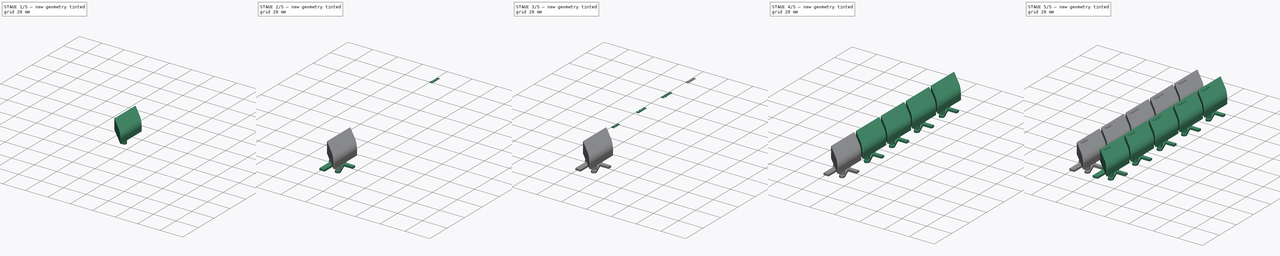
[diagram: build sequence overview — one tinted view per stage of 5, left to right]
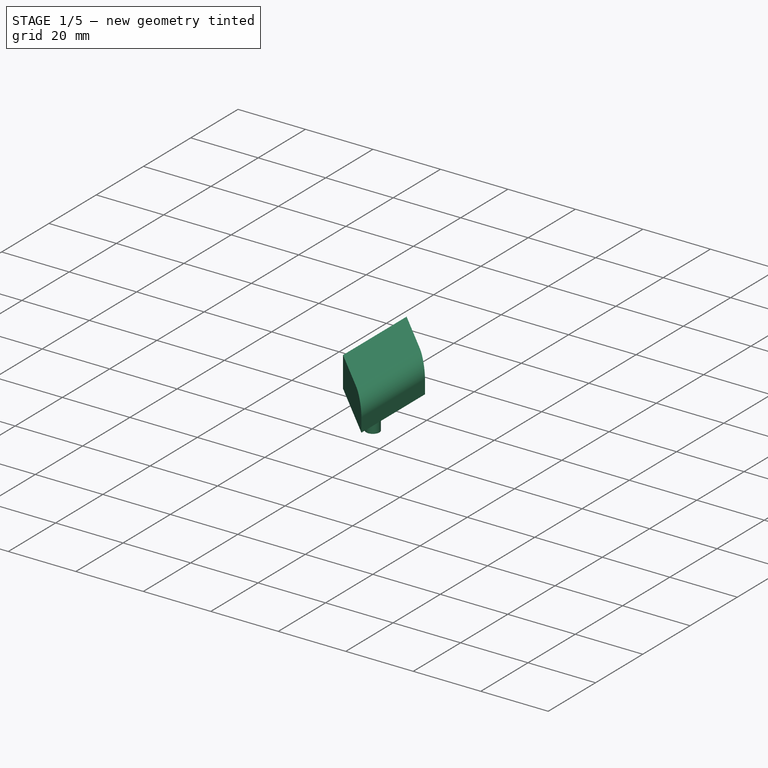
[diagram: stage 1 of 5 — iso view after this stage's code; geometry added in this stage tinted green]
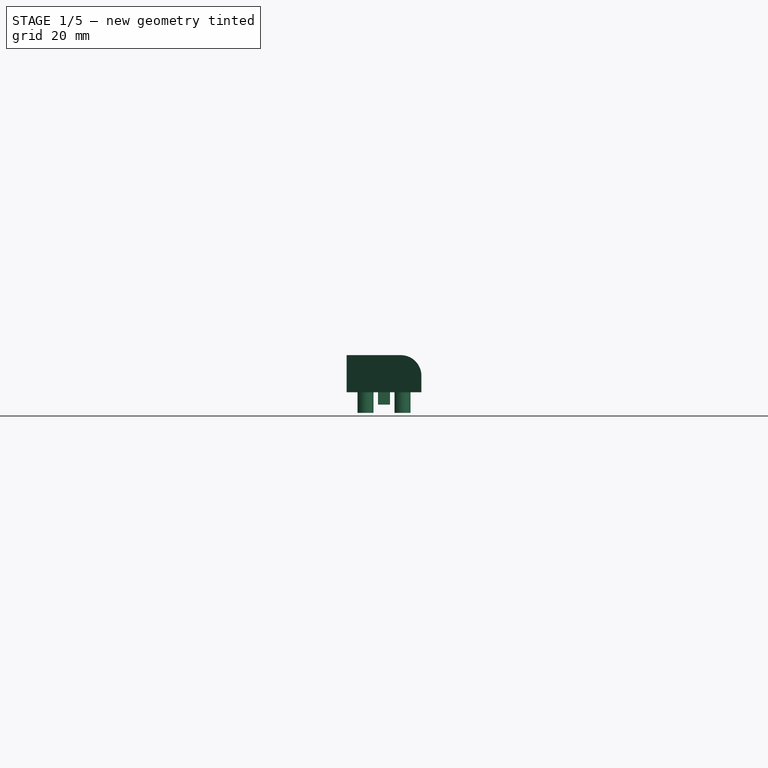
[diagram: stage 1 of 5 — front view after this stage's code; geometry added in this stage tinted green]
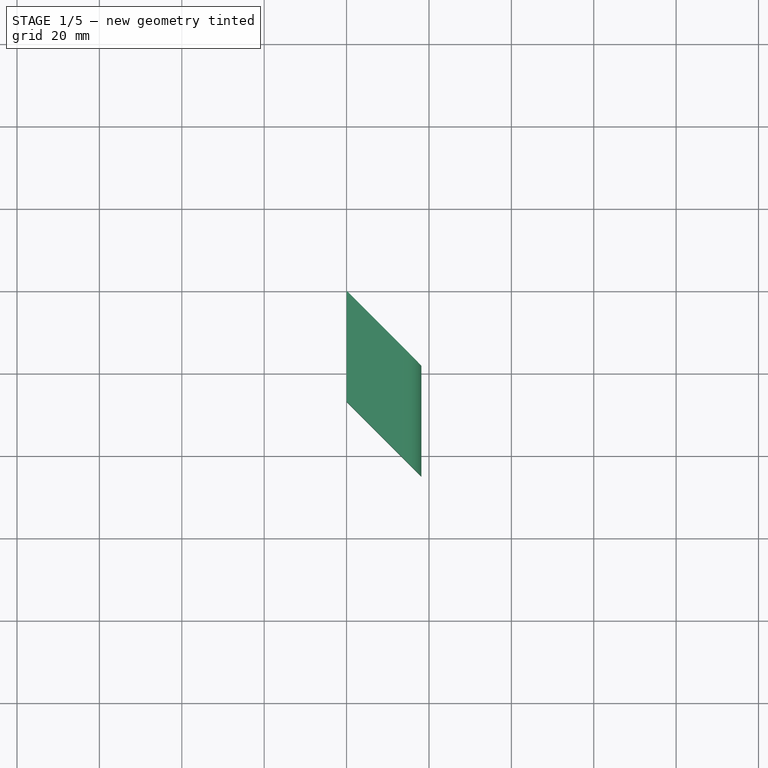
[diagram: stage 1 of 5 — top view after this stage's code; geometry added in this stage tinted green]
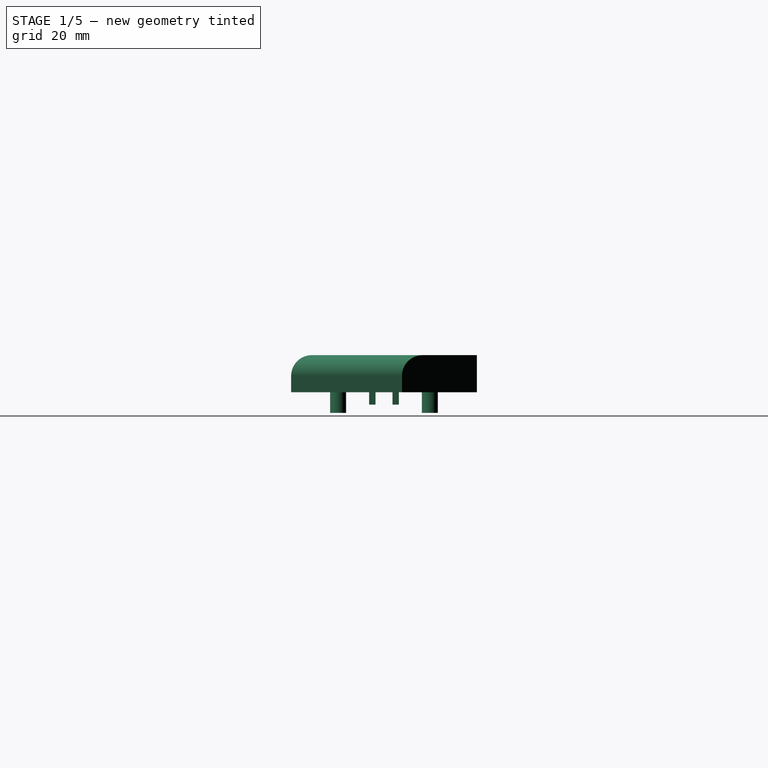
[diagram: stage 1 of 5 — right view after this stage's code; geometry added in this stage tinted green]
FCSTD DOCUMENT  (FreeCAD 0.21R33771 (Git))
Label: ConsoleXE
License: All rights reserved
LicenseURL: http://en.wikipedia.org/wiki/All_rights_reserved
objects: Sketcher::SketchObject×6, PartDesign::Pad×5, Part::Part2DObjectPython×5, Part::Extrusion×5, Part::FeaturePython×4, Part::Compound×3, PartDesign::Body×2, PartDesign::Pocket×1, PartDesign::Line×1, PartDesign::Point×1, PartDesign::Fillet×1, PartDesign::FeatureBase×1, Part::Cut×1
note: 43 computed .brp shape members not serialized (recipe doc carries the construction recipe); baked Part::Feature solids carry a one-line shape summary decoded from their .brp

FEATURE [Sketcher::SketchObject] Sketch  label="SideSketch"
  FullyConstrained = true
  MapMode = 5
  Placement = pos=(0,0,0) rot=(1,0,0;1.5708rad)
  Support = -> [XZ_Plane]
  expr: Constraints[10] = 26.4 * cos(45) - 0.5
  sketch-geometry (5):
    g0: LineSegment StartX=0 StartY=0 StartZ=0 EndX=0 EndY=9 EndZ=0
    g1: LineSegment StartX=0 StartY=9 StartZ=0 EndX=13.1676 EndY=9 EndZ=0
    g2: ArcOfCircle CenterX=13.1676 CenterY=4 CenterZ=0 NormalX=0 NormalY=0 NormalZ=1 AngleXU=0 Radius=5 StartAngle=0 EndAngle=1.5708
    g3: LineSegment StartX=18.1676 StartY=4 StartZ=0 EndX=18.1676 EndY=0 EndZ=0
    g4: LineSegment StartX=18.1676 StartY=0 StartZ=0 EndX=0 EndY=0 EndZ=0
  constraints (14):
    c: Coincident(g-1,g0)
    c: PointOnObject(g0,g-2)
    c: Coincident(g0,g1)
    c: Horizontal(g1)
    c: Tangent(g1,g2) = 1.5708
    c: Coincident(g2,g3)
    c: PointOnObject(g3,g-1)
    c: Vertical(g3)
    c: Coincident(g3,g4)
    c: Coincident(g4,g0)
    c: DistanceX(g4,g4) = 18.1676
    c: Horizontal(g2,g2)
    c: Radius(g2) = 5
    c: DistanceY(g0,g0) = 9
FEATURE [PartDesign::Pad] Pad  label="MainPad"
  Direction = (0,-1,-2e-16)
  Length = 45.0676
  Length2 = 10
  Placement = pos=(0,0,0) rot=(1,0,0;1.5708rad)
  Profile = -> Sketch
  ReferenceAxis = -> Sketch [N_Axis]
  Type = 0
  expr: Length = 26.4 mm * (1 + cos(45))
FEATURE [Sketcher::SketchObject] Sketch001  label="RemoveSidesSketch"
  ExternalGeometry = -> [Pad]
  FullyConstrained = true
  MapMode = 5
  Placement = pos=(0,0,0) rot=(1,0,0;3.14159rad)
  sketch-geometry (6):
    g0: LineSegment StartX=0 StartY=0 StartZ=0 EndX=18.1676 EndY=0 EndZ=0
    g1: LineSegment StartX=18.1676 StartY=0 StartZ=0 EndX=18.1676 EndY=18.1676 EndZ=0
    g2: LineSegment StartX=18.1676 StartY=18.1676 StartZ=0 EndX=0 EndY=0 EndZ=0
    g3: LineSegment StartX=18.1676 StartY=45.0676 StartZ=0 EndX=0 EndY=26.9 EndZ=0
    g4: LineSegment StartX=0 StartY=26.9 StartZ=0 EndX=0 EndY=45.0676 EndZ=0
    g5: LineSegment StartX=0 StartY=45.0676 StartZ=0 EndX=18.1676 EndY=45.0676 EndZ=0
  constraints (15):
    c: Coincident(g-1,g0)
    c: Coincident(g0,g1)
    c: Vertical(g1)
    c: Coincident(g1,g2)
    c: Coincident(g2,g0)
    c: Angle(g0,g2) = 0.785398
    c: Coincident(g3,g-3)
    c: PointOnObject(g3,g-2)
    c: Coincident(g3,g4)
    c: PointOnObject(g4,g-2)
    c: Coincident(g4,g5)
    c: Coincident(g5,g3)
    c: Horizontal(g5)
    c: Angle(g5,g3) = 0.785398
    c: Coincident(g0,g-4)
FEATURE [PartDesign::Pocket] Pocket  label="RemoveSidesPocket"
  BaseFeature = -> Pad
  Direction = (0,0,1)
  Length = 5
  Length2 = 5
  Placement = pos=(0,0,0) rot=(1,0,0;1.5708rad)
  Profile = -> Sketch001
  ReferenceAxis = -> Sketch001 [N_Axis]
  Type = 1
FEATURE [Sketcher::SketchObject] Sketch002  label="StabilizerPillarSketch"
  ExternalGeometry = -> [Pocket]
  FullyConstrained = true
  MapMode = 5
  Placement = pos=(0,0,0) rot=(1,0,0;3.14159rad)
  Support = -> [Pocket]
  sketch-geometry (4):
    g0: Circle CenterX=4.59721 CenterY=11.4041 CenterZ=0 NormalX=0 NormalY=0 NormalZ=1 AngleXU=0 Radius=1.95
    g1: Circle CenterX=13.5704 CenterY=33.6635 CenterZ=0 NormalX=0 NormalY=0 NormalZ=1 AngleXU=0 Radius=1.95
    g2: GeomPoint X=9.08381 Y=22.5338 Z=0
    g3: LineSegment StartX=0 StartY=0 StartZ=0 EndX=18.1676 EndY=45.0676 EndZ=0
  constraints (8):
    c: Symmetric(g0,g1,g2)
    c: Symmetric(g-3,g-1,g2)
    c: Coincident(g3,g-1)
    c: Coincident(g3,g-3)
    c: PointOnObject(g1,g3)
    c: Equal(g1,g0)
    c: Diameter(g1) = 3.9
    c: Distance(g0,g1) = 24
FEATURE [PartDesign::Pad] Pad001  label="StabilizerPillars"
  BaseFeature = -> Pocket
  Direction = (0,2e-16,-1)
  Length = 5
  Length2 = 10
  Placement = pos=(0,0,0) rot=(1,0,0;1.5708rad)
  Profile = -> Sketch002
  ReferenceAxis = -> Sketch002 [N_Axis]
  Type = 0
FEATURE [Sketcher::SketchObject] Sketch003  label="ChocV1Sketch"
  ExternalGeometry = -> [Pocket]
  FullyConstrained = true
  MapMode = 5
  Placement = pos=(0,0,0) rot=(1,0,0;3.14159rad)
  Support = -> [Pocket]
  sketch-geometry (26):
    g0: GeomPoint X=9.08381 Y=22.5338 Z=0
    g1: LineSegment StartX=10.5338 StartY=25.9588 StartZ=0 EndX=10.5338 EndY=24.8088 EndZ=0
    g2: LineSegment StartX=7.63381 StartY=24.8088 StartZ=0 EndX=7.63381 EndY=25.9588 EndZ=0
    g3: LineSegment StartX=10.5338 StartY=20.2588 StartZ=0 EndX=10.5338 EndY=19.1088 EndZ=0
    g4: LineSegment StartX=7.63381 StartY=19.1088 StartZ=0 EndX=7.63381 EndY=20.2588 EndZ=0
    g5: LineSegment StartX=7.63381 StartY=25.9588 StartZ=0 EndX=8.88381 EndY=25.9588 EndZ=0
    g6: LineSegment StartX=9.28381 StartY=25.9588 StartZ=0 EndX=10.5338 EndY=25.9588 EndZ=0
    g7: LineSegment StartX=8.88381 StartY=24.8088 StartZ=0 EndX=7.63381 EndY=24.8088 EndZ=0
    g8: LineSegment StartX=10.5338 StartY=24.8088 StartZ=0 EndX=9.28381 EndY=24.8088 EndZ=0
    g9: LineSegment StartX=7.63381 StartY=20.2588 StartZ=0 EndX=8.88381 EndY=20.2588 EndZ=0
    g10: LineSegment StartX=9.28381 StartY=20.2588 StartZ=0 EndX=10.5338 EndY=20.2588 EndZ=0
    g11: LineSegment StartX=8.88381 StartY=19.1088 StartZ=0 EndX=7.63381 EndY=19.1088 EndZ=0
    g12: LineSegment StartX=10.5338 StartY=19.1088 StartZ=0 EndX=9.28381 EndY=19.1088 EndZ=0
    g13: GeomPoint X=9.08381 Y=25.3838 Z=0
    g14: LineSegment StartX=8.88381 StartY=20.2588 StartZ=0 EndX=8.88381 EndY=20.4588 EndZ=0
    g15: LineSegment StartX=8.88381 StartY=20.4588 StartZ=0 EndX=9.28381 EndY=20.4588 EndZ=0
    g16: LineSegment StartX=9.28381 StartY=20.4588 StartZ=0 EndX=9.28381 EndY=20.2588 EndZ=0
    g17: LineSegment StartX=8.88381 StartY=19.1088 StartZ=0 EndX=8.88381 EndY=18.9088 EndZ=0
    g18: LineSegment StartX=8.88381 StartY=18.9088 StartZ=0 EndX=9.28381 EndY=18.9088 EndZ=0
    g19: LineSegment StartX=9.28381 StartY=18.9088 StartZ=0 EndX=9.28381 EndY=19.1088 EndZ=0
    g20: LineSegment StartX=8.88381 StartY=24.8088 StartZ=0 EndX=8.88381 EndY=24.6088 EndZ=0
    g21: LineSegment StartX=8.88381 StartY=24.6088 StartZ=0 EndX=9.28381 EndY=24.6088 EndZ=0
    g22: LineSegment StartX=9.28381 StartY=24.6088 StartZ=0 EndX=9.28381 EndY=24.8088 EndZ=0
    g23: LineSegment StartX=8.88381 StartY=25.9588 StartZ=0 EndX=8.88381 EndY=26.1588 EndZ=0
    g24: LineSegment StartX=8.88381 StartY=26.1588 StartZ=0 EndX=9.28381 EndY=26.1588 EndZ=0
    g25: LineSegment StartX=9.28381 StartY=26.1588 StartZ=0 EndX=9.28381 EndY=25.9588 EndZ=0
  constraints (72):
    c: Symmetric(g-3,g-1,g0)
    c: Coincident(g6,g1)
    c: Coincident(g1,g8)
    c: Coincident(g7,g2)
    c: Coincident(g2,g5)
    c: Vertical(g1)
    c: Vertical(g2)
    c: Coincident(g10,g3)
    c: Coincident(g3,g12)
    c: Coincident(g11,g4)
    c: Coincident(g4,g9)
    c: Vertical(g3)
    c: Vertical(g4)
    c: DistanceY(g1,g1) = 1.15
    c: Equal(g1,g3)
    c: DistanceX(g5,g6) = 2.9
    c: Vertical(g7,g9)
    c: Vertical(g1,g10)
    c: Symmetric(g7,g10,g0)
    c: DistanceY(g11,g7) = 5.7
    c: Horizontal(g5)
    c: Horizontal(g6)
    c: Horizontal(g7)
    c: Horizontal(g8)
    c: Horizontal(g9)
    c: Horizontal(g10)
    c: Horizontal(g11)
    c: Horizontal(g12)
    c: Vertical(g5,g7)
    c: Vertical(g5,g9)
    c: Vertical(g5,g11)
    c: DistanceX(g11,g12) = 0.4
    c: Symmetric(g5,g8,g13)
    c: Symmetric(g2,g1,g13)
    c: Coincident(g9,g14)
    c: Vertical(g14)
    c: Coincident(g14,g15)
    c: Horizontal(g15)
    c: Coincident(g15,g16)
    c: Coincident(g16,g10)
    c: Vertical(g16)
    c: Coincident(g11,g17)
    c: Vertical(g17)
    c: Coincident(g17,g18)
    c: Horizontal(g18)
    c: Coincident(g18,g19)
    c: Coincident(g19,g12)
    c: Vertical(g19)
    c: Coincident(g7,g20)
    c: Vertical(g20)
    c: Coincident(g20,g21)
    c: Horizontal(g21)
    c: Coincident(g21,g22)
    c: Coincident(g22,g8)
    c: Vertical(g22)
    c: Coincident(g5,g23)
    c: Vertical(g23)
    c: Coincident(g23,g24)
    c: Horizontal(g24)
    c: Coincident(g24,g25)
    c: Coincident(g25,g6)
    c: Vertical(g25)
    c: Vertical(g6,g8)
    c: Vertical(g15,g18)
    c: Vertical(g15,g21)
    c: Horizontal(g7,g8)
    c: Horizontal(g11,g12)
    c: Horizontal(g9,g10)
    c: DistanceY(g18,g12) = 0.2
    c: Equal(g19,g16)
    c: Equal(g19,g22)
    c: Equal(g22,g25)
FEATURE [PartDesign::Pad] Pad002  label="ChocV1Pad"
  BaseFeature = -> Pad001
  Direction = (0,2e-16,-1)
  Length = 3
  Length2 = 10
  Placement = pos=(0,0,0) rot=(1,0,0;1.5708rad)
  Profile = -> Sketch003
  ReferenceAxis = -> Sketch003 [N_Axis]
  Type = 0
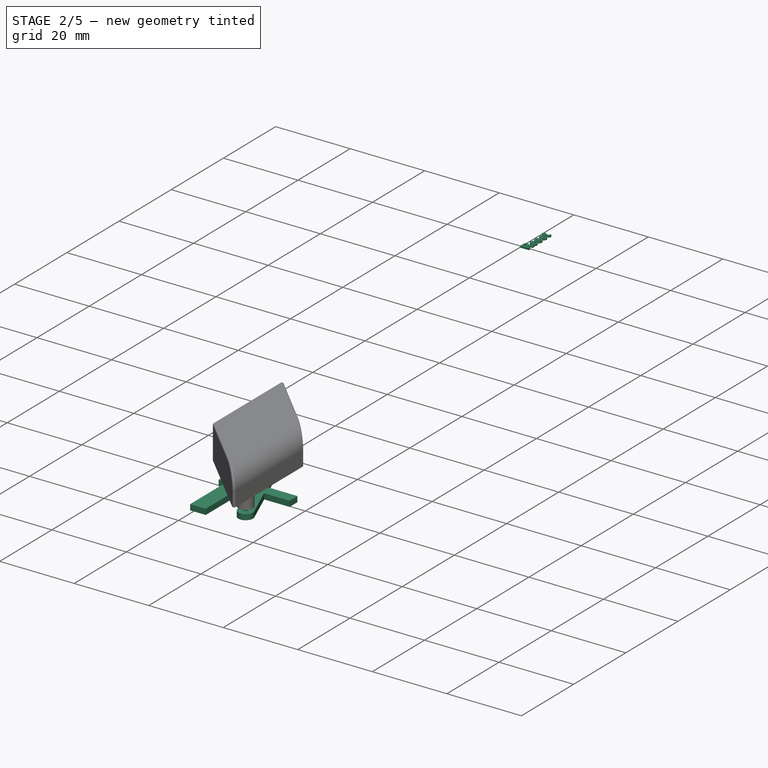
[diagram: stage 2 of 5 — iso view after this stage's code; geometry added in this stage tinted green]
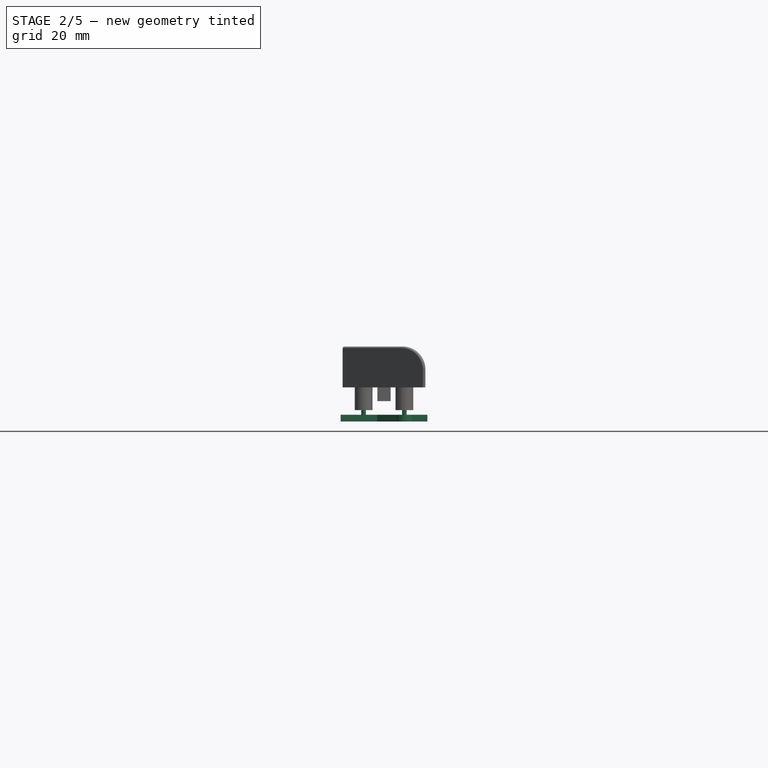
[diagram: stage 2 of 5 — front view after this stage's code; geometry added in this stage tinted green]
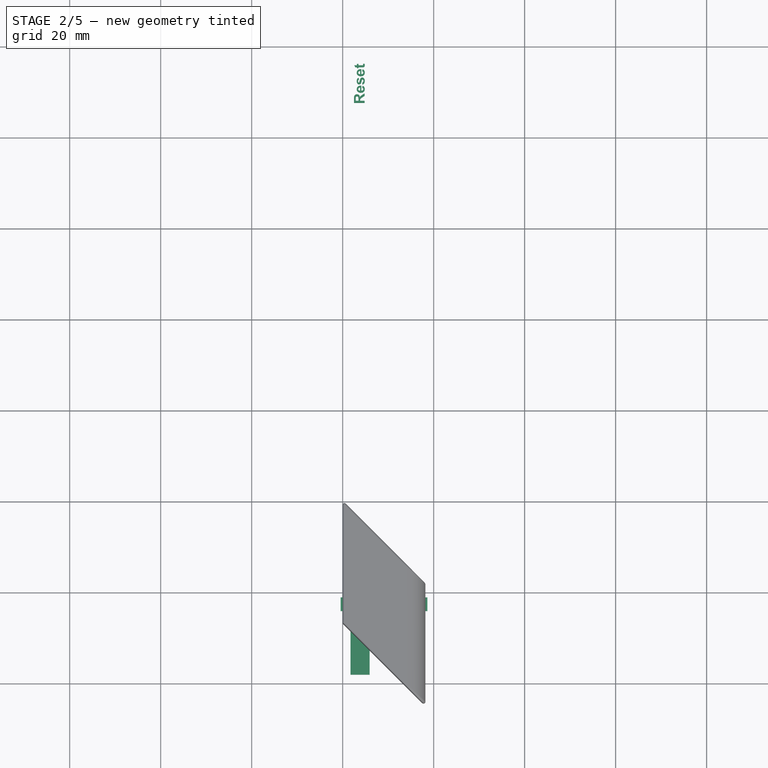
[diagram: stage 2 of 5 — top view after this stage's code; geometry added in this stage tinted green]
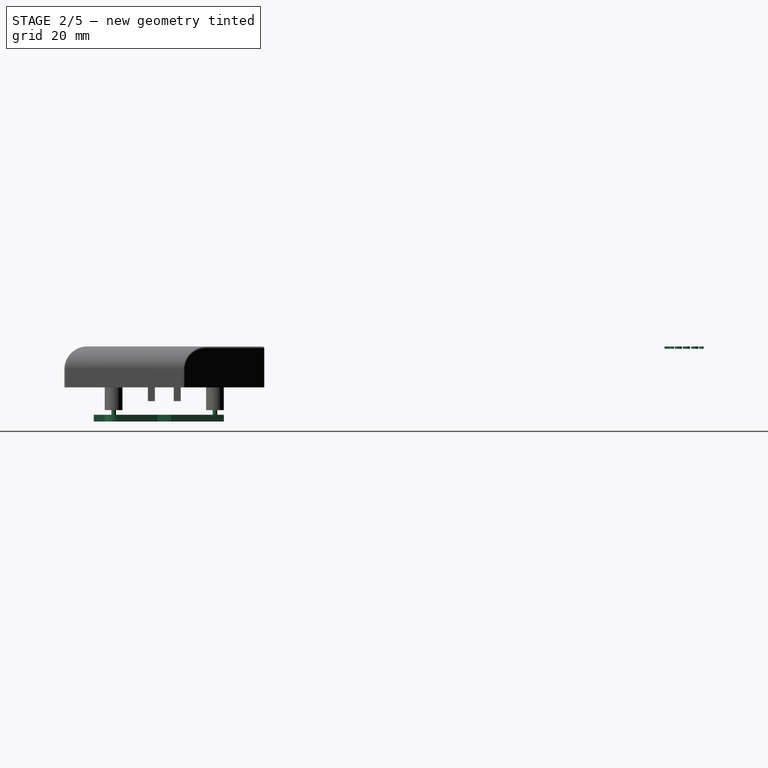
[diagram: stage 2 of 5 — right view after this stage's code; geometry added in this stage tinted green]
FEATURE [Sketcher::SketchObject] Sketch004  label="SupportSketch"
  ExternalGeometry = -> [Pad002]
  FullyConstrained = true
  MapMode = 5
  Placement = pos=(0,0,-5) rot=(1,0,0;3.14159rad)
  Support = -> [Pad002]
  sketch-geometry (2):
    g0: Circle CenterX=13.5704 CenterY=33.6635 CenterZ=0 NormalX=0 NormalY=0 NormalZ=1 AngleXU=0 Radius=0.5
    g1: Circle CenterX=4.59721 CenterY=11.4041 CenterZ=0 NormalX=0 NormalY=0 NormalZ=1 AngleXU=0 Radius=0.5
  constraints (4):
    c: Coincident(g0,g-4)
    c: Coincident(g1,g-3)
    c: Equal(g0,g1)
    c: Diameter(g0) = 1
FEATURE [PartDesign::Pad] Pad003  label="SupportPad"
  BaseFeature = -> Pad002
  Direction = (0,2e-16,-1)
  Length = 1
  Length2 = 10
  Placement = pos=(0,0,0) rot=(1,0,0;1.5708rad)
  Profile = -> Sketch004
  ReferenceAxis = -> Sketch004 [N_Axis]
  Type = 0
FEATURE [Sketcher::SketchObject] Sketch005  label="PlatformSketch"
  ExternalGeometry = -> [Pad003]
  FullyConstrained = true
  MapMode = 5
  Placement = pos=(2.2e-15,8e-16,-6) rot=(1,0,0;3.14159rad)
  Support = -> [Pad003]
  expr: Constraints[31] = 19.05 * 1.5
  sketch-geometry (19):
    g0: GeomPoint X=9.08381 Y=22.5338 Z=0
    g1: LineSegment StartX=5.91361 StartY=9.4541 StartZ=0 EndX=1.70865 EndY=9.4541 EndZ=0
    g2: GeomPoint X=9.08381 Y=22.5338 Z=0
    g3: LineSegment StartX=18.6088 StartY=24.0338 StartZ=0 EndX=18.6088 EndY=21.0338 EndZ=0
    g4: LineSegment StartX=-0.44119 StartY=21.0338 StartZ=0 EndX=-0.44119 EndY=24.0338 EndZ=0
    g5: GeomPoint X=9.08381 Y=22.5338 Z=0
    g6: LineSegment StartX=15.379 StartY=32.9344 StartZ=0 EndX=11.791 EndY=24.0338 EndZ=0
    g7: LineSegment StartX=18.6088 StartY=21.0338 StartZ=0 EndX=10.5816 EndY=21.0338 EndZ=0
    g8: LineSegment StartX=6.37665 StartY=21.0338 StartZ=0 EndX=-0.44119 EndY=21.0338 EndZ=0
    g9: LineSegment StartX=11.791 StartY=24.0338 StartZ=0 EndX=18.6088 EndY=24.0338 EndZ=0
    g10: LineSegment StartX=10.5816 StartY=21.0338 StartZ=0 EndX=5.91361 EndY=9.4541 EndZ=0
    g11: LineSegment StartX=1.70865 StartY=9.4541 StartZ=0 EndX=6.37665 EndY=21.0338 EndZ=0
    g12: LineSegment StartX=1.70865 StartY=38.0291 StartZ=0 EndX=5.91361 EndY=38.0291 EndZ=0
    g13: LineSegment StartX=7.58601 StartY=24.0338 StartZ=0 EndX=11.7618 EndY=34.3926 EndZ=0
    g14: ArcOfCircle CenterX=13.5704 CenterY=33.6635 CenterZ=0 NormalX=0 NormalY=0 NormalZ=1 AngleXU=0 Radius=1.95 StartAngle=5.89999 EndAngle=9.04159
    g15: LineSegment StartX=-0.44119 StartY=24.0338 StartZ=0 EndX=1.70865 EndY=24.0338 EndZ=0
    g16: LineSegment StartX=5.91361 StartY=24.0338 StartZ=0 EndX=7.58601 EndY=24.0338 EndZ=0
    g17: LineSegment StartX=1.70865 StartY=38.0291 StartZ=0 EndX=1.70865 EndY=24.0338 EndZ=0
    g18: LineSegment StartX=5.91361 StartY=38.0291 StartZ=0 EndX=5.91361 EndY=24.0338 EndZ=0
  constraints (49):
    c: Symmetric(g-4,g-3,g0)
    c: Coincident(g10,g1)
    c: Coincident(g1,g11)
    c: Coincident(g2,g0)
    c: Coincident(g3,g7)
    c: Coincident(g8,g4)
    c: Coincident(g4,g15)
    c: Coincident(g9,g3)
    c: Vertical(g3)
    c: Vertical(g4)
    c: Symmetric(g8,g3,g5)
    c: Coincident(g5,g0)
    c: DistanceY(g3,g3) = 3
    c: DistanceX(g15,g9) = 19.05
    c: Tangent(g6,g-4)
    c: Horizontal(g7)
    c: Horizontal(g8)
    c: Horizontal(g9)
    c: Horizontal(g8,g7)
    c: Horizontal(g16,g6)
    c: Coincident(g6,g9)
    c: Coincident(g16,g13)
    c: Coincident(g8,g11)
    c: Coincident(g7,g10)
    c: Tangent(g10,g-4)
    c: Horizontal(g12,g12)
    c: Equal(g12,g1)
    c: Vertical(g12,g1)
    c: PointOnObject(g8,g13)
    c: PointOnObject(g7,g6)
    c: Parallel(g11,g10)
    c: DistanceY(g1,g12) = 28.575
    c: Tangent(g1,g-4)
    c: Horizontal(g1)
    c: Tangent(g13,g-3) = 1.5708
    c: Coincident(g14,g-3)
    c: Coincident(g14,g13)
    c: Horizontal(g15)
    c: Horizontal(g16)
    c: Coincident(g17,g12)
    c: Coincident(g17,g15)
    c: Vertical(g17)
    c: Coincident(g18,g12)
    c: Vertical(g18)
    c: Horizontal(g15,g16)
    c: Coincident(g18,g16)
    c: Tangent(g11,g-4)
    c: Coincident(g14,g6)
    c: Tangent(g6,g-3)
FEATURE [PartDesign::Pad] Pad004  label="Platform"
  BaseFeature = -> Pad003
  Direction = (4e-16,4e-16,-1)
  Length = 1.5
  Length2 = 10
  Placement = pos=(0,0,0) rot=(1,0,0;1.5708rad)
  Profile = -> Sketch005
  ReferenceAxis = -> Sketch005 [N_Axis]
  Type = 0
FEATURE [Part::Extrusion] Extrude004  label="ResetExtrude"
  Base = -> ShapeString004
  Dir = (0,0,1)
  DirMode = 2
  FaceMakerClass = Part::FaceMakerBullseye
  LengthFwd = 0.5
  LengthRev = 0
  Reversed = true
  Solid = false
  Symmetric = false
FEATURE [Part::FeaturePython] LinearArray001  label="MainRowArray"  # WARN: FeaturePython — macro-defined, semantics opaque (R4)
  Alignment = 0
  CellStart = A1
  Count = 2
  Dir = (1,0,0)
  DirIsDriven = true
  DistributionLaw = 0
  DrivenProperty = 1
  EndInclusive = true
  ExposePlacement = false
  GeneratorMode = 1
  MarkerShape = 1
  MarkerSize = 0
  NumElements = 2
  OrientMode = 1
  Point = (0,0,0)
  PointIsDriven = true
  Reverse = false
  SpanEnd = 20
  SpanStart = 0
  Step = 19.05
  Type = lattice2LinearArray.LinearArray
  VSGVersion = 1
  Values = 0.0 | 19.05
  ValuesSource = 2
  isLattice = 1
FEATURE [PartDesign::Fillet] Fillet
  Base = -> Pad004 [Edge89,Edge92,Edge93,Edge95,Edge96]
  BaseFeature = -> Pad004
  Placement = pos=(0,0,0) rot=(1,0,0;1.5708rad)
  Radius = 0.4
  SupportTransform = false
  UseAllEdges = false
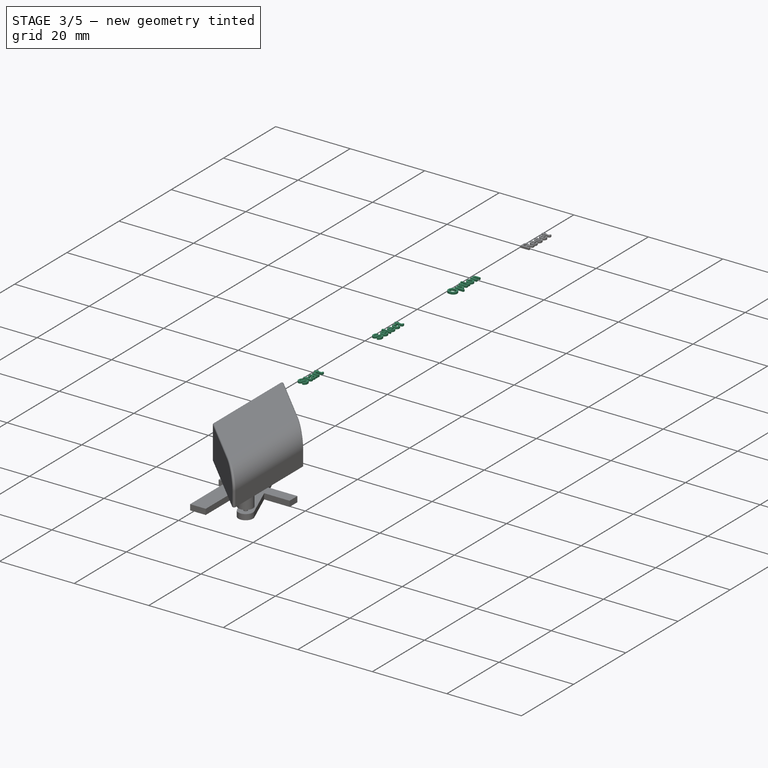
[diagram: stage 3 of 5 — iso view after this stage's code; geometry added in this stage tinted green]
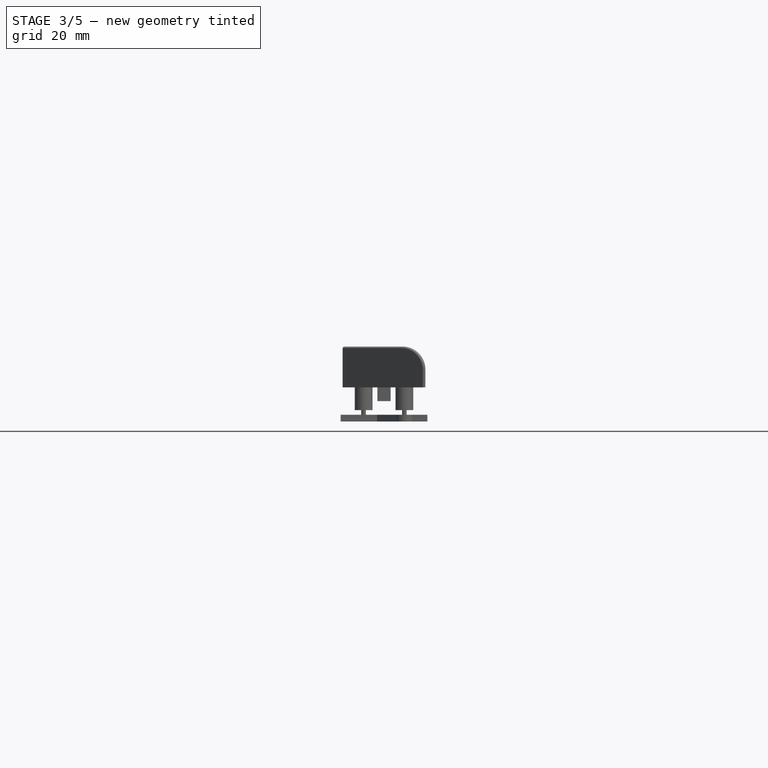
[diagram: stage 3 of 5 — front view after this stage's code; geometry added in this stage tinted green]
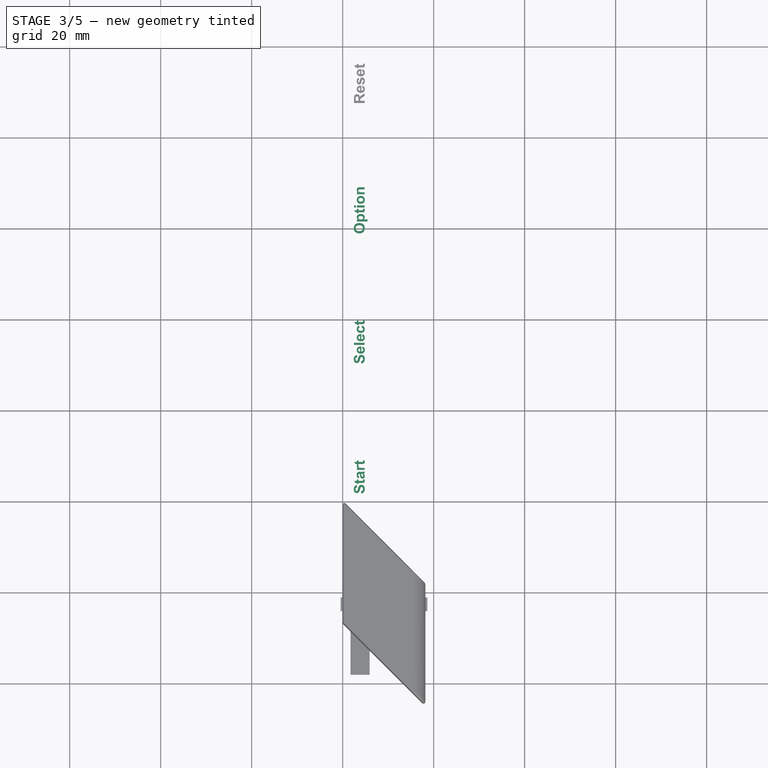
[diagram: stage 3 of 5 — top view after this stage's code; geometry added in this stage tinted green]
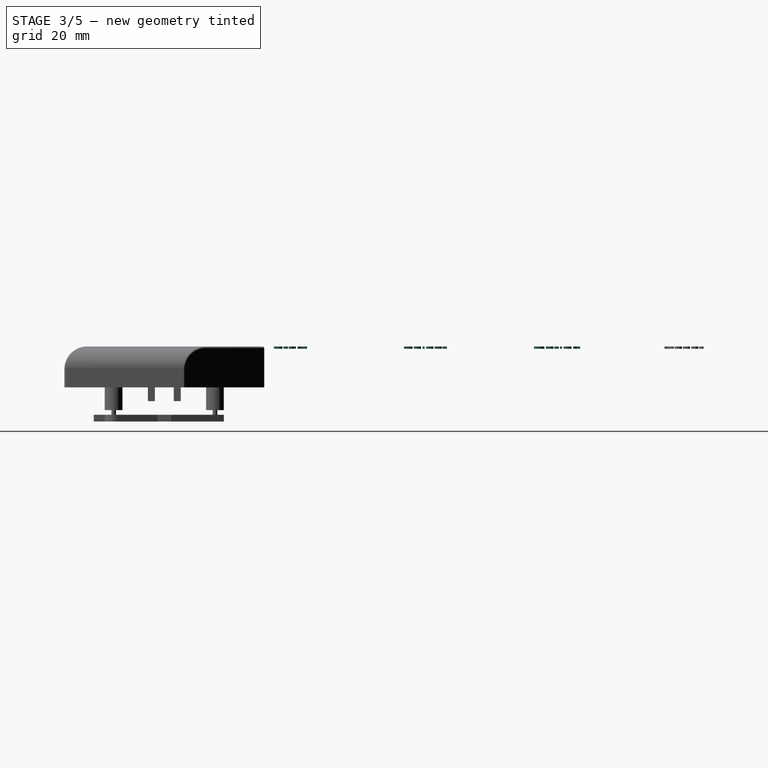
[diagram: stage 3 of 5 — right view after this stage's code; geometry added in this stage tinted green]
FEATURE [Part::Extrusion] Extrude001  label="StartExtrude"
  Base = -> ShapeString001
  Dir = (0,0,1)
  DirMode = 2
  FaceMakerClass = Part::FaceMakerBullseye
  LengthFwd = 0.5
  LengthRev = 0
  Reversed = true
  Solid = false
  Symmetric = false
FEATURE [Part::Extrusion] Extrude002  label="SelectExtrude"
  Base = -> ShapeString002
  Dir = (0,0,1)
  DirMode = 2
  FaceMakerClass = Part::FaceMakerBullseye
  LengthFwd = 0.5
  LengthRev = 0
  Reversed = true
  Solid = false
  Symmetric = false
FEATURE [Part::Extrusion] Extrude003  label="OptionExtrude"
  Base = -> ShapeString003
  Dir = (0,0,1)
  DirMode = 2
  FaceMakerClass = Part::FaceMakerBullseye
  LengthFwd = 0.5
  LengthRev = 0
  Reversed = true
  Solid = false
  Symmetric = false
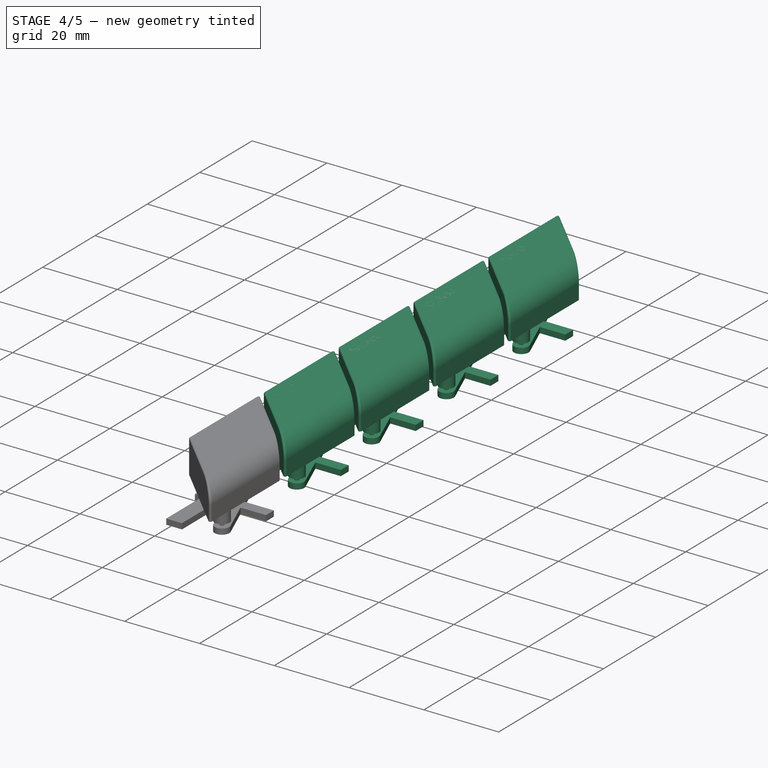
[diagram: stage 4 of 5 — iso view after this stage's code; geometry added in this stage tinted green]
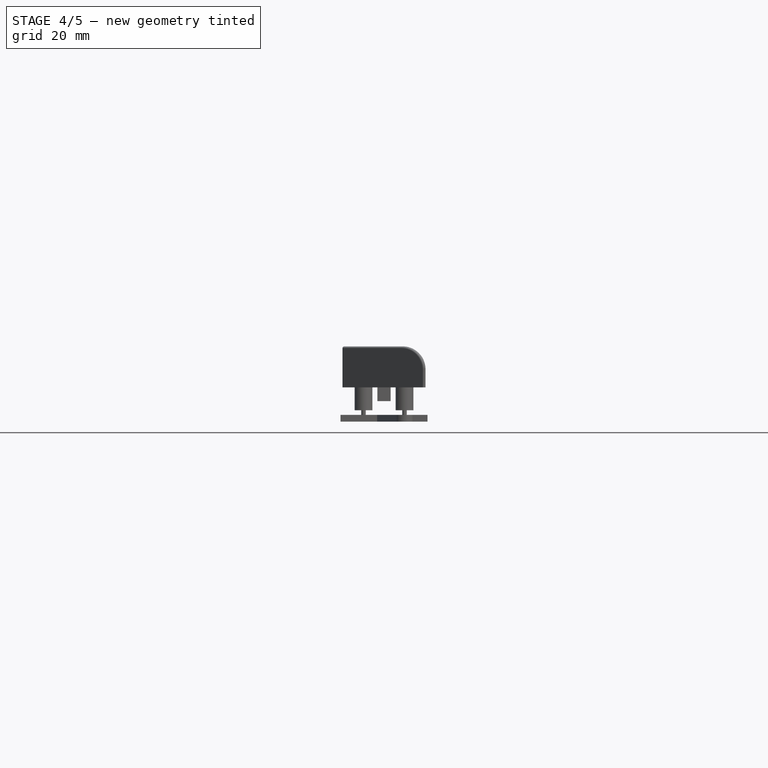
[diagram: stage 4 of 5 — front view after this stage's code; geometry added in this stage tinted green]
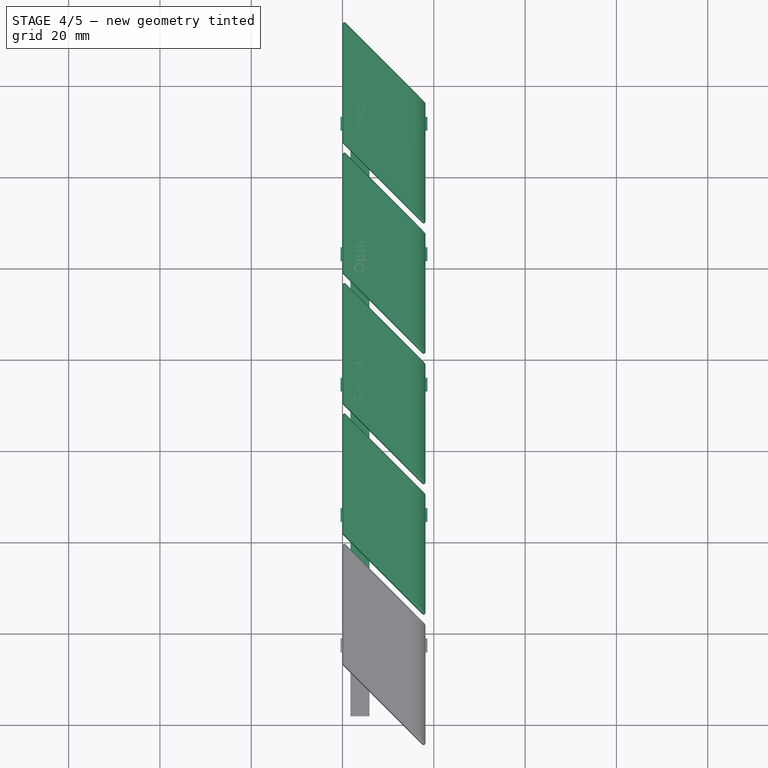
[diagram: stage 4 of 5 — top view after this stage's code; geometry added in this stage tinted green]
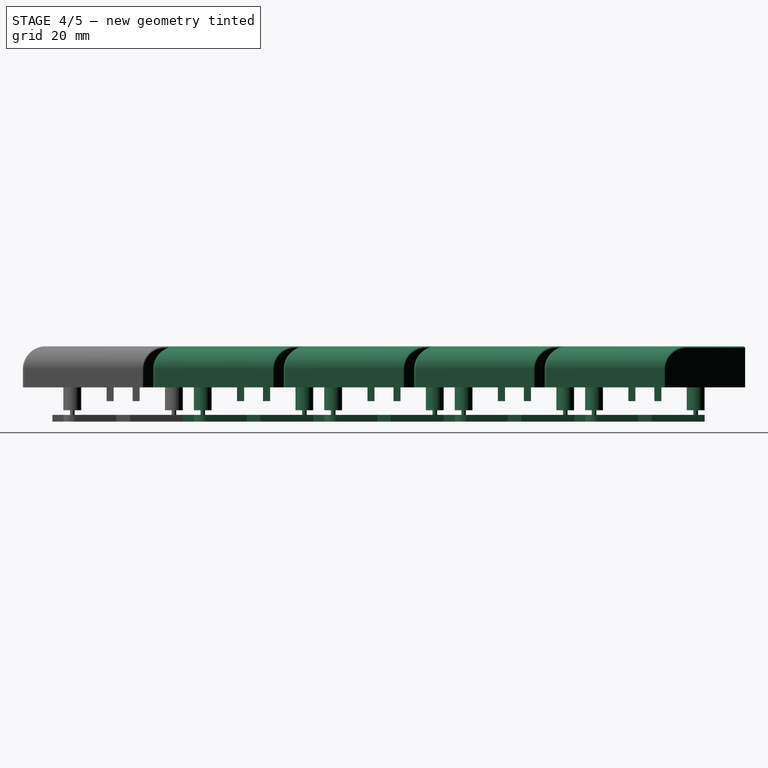
[diagram: stage 4 of 5 — right view after this stage's code; geometry added in this stage tinted green]
FEATURE [Part::FeaturePython] LinearArray  # WARN: FeaturePython — macro-defined, semantics opaque (R4)
  Alignment = 0
  CellStart = A1
  Count = 5
  Dir = (0,1,0)
  DirIsDriven = true
  DistributionLaw = 0
  DrivenProperty = 1
  EndInclusive = true
  ExposePlacement = false
  GeneratorMode = 1
  MarkerShape = 1
  MarkerSize = 0
  NumElements = 5
  OrientMode = 0
  Point = (0,0,0)
  PointIsDriven = true
  Reverse = false
  SpanEnd = 50
  SpanStart = 0
  Step = 28.575
  Type = lattice2LinearArray.LinearArray
  VSGVersion = 1
  Values = 0.0 | 28.575000000000003 | 57.150000000000006 | 85.72500000000001 | 114.30000000000001
  ValuesSource = 2
  isLattice = 1
  expr: Step = 19.05 * 1.5
FEATURE [Part::Part2DObjectPython] ShapeString  label="HelpShapeString"  # Draft 2D object (typed FeaturePython)
  FontFile = <path>
  MakeFace = true
  Placement = pos=(4.82046,-27.1386,9) rot=(0,0,1;1.5708rad)
  Size = 2.5
  String = Help
  Tracking = 0
FEATURE [PartDesign::Line] DatumLine  label="TextTopDatumLine"
  AttacherType = Attacher::AttachEngineLine
  AttachmentOffset = pos=(2.3,0,0) rot=(0,0,1;0rad)
  Length = 20
  MapMode = 29
  Placement = pos=(2.3,1.8e-15,9) rot=(1,0,0;1.5708rad)
  ResizeMode = 0
  Support = -> [Pocket]
FEATURE [PartDesign::Point] DatumPoint  label="TextTopLeftDatumPoint"
  AttacherType = Attacher::AttachEnginePoint
  AttachmentOffset = pos=(2.3,0,0) rot=(0,0,1;0rad)
  MapMode = 37
  Placement = pos=(2.3,-26.9,9) rot=(0,0,1;0rad)
  Support = -> [Pocket]
FEATURE [Part::Part2DObjectPython] ShapeString001  label="StartShapeString"  # Draft 2D object (typed FeaturePython)
  FontFile = <path>
  MakeFace = true
  Placement = pos=(4.82046,1.435,9) rot=(0,0,1;1.5708rad)
  Size = 2.5
  String = Start
  Tracking = 0
  expr: .Placement.Base.y = -27.14 + 1.5 * 19.05
FEATURE [Part::Part2DObjectPython] ShapeString002  label="SelectShapeString"  # Draft 2D object (typed FeaturePython)
  FontFile = <path>
  MakeFace = true
  Placement = pos=(4.82046,30.01,9) rot=(0,0,1;1.5708rad)
  Size = 2.5
  String = Select
  Tracking = 0
  expr: .Placement.Base.y = -27.14 + 3 * 19.05
FEATURE [Part::Part2DObjectPython] ShapeString003  label="OptionShapeString"  # Draft 2D object (typed FeaturePython)
  FontFile = <path>
  MakeFace = true
  Placement = pos=(4.82046,58.585,9) rot=(0,0,1;1.5708rad)
  Size = 2.5
  String = Option
  Tracking = 0
  expr: .Placement.Base.y = -27.14 + 4.5 * 19.05
FEATURE [Part::Part2DObjectPython] ShapeString004  label="ResetShapeString"  # Draft 2D object (typed FeaturePython)
  FontFile = <path>
  MakeFace = true
  Placement = pos=(4.82046,87.16,9) rot=(0,0,1;1.5708rad)
  Size = 2.5
  String = Reset
  Tracking = 0
  expr: .Placement.Base.y = -27.14 + 6 * 19.05
FEATURE [Part::Extrusion] Extrude  label="HelpExtrude"
  Base = -> ShapeString
  Dir = (0,0,1)
  DirMode = 2
  FaceMakerClass = Part::FaceMakerBullseye
  LengthFwd = 0.5
  LengthRev = 0
  Reversed = true
  Solid = false
  Symmetric = false
FEATURE [Part::Compound] Compound001  label="MainLegendsCompound"
  Links = -> [Extrude,Extrude001,Extrude002,Extrude003,Extrude004]
FEATURE [PartDesign::Body] Body  label="ConsoleKeyBody"
  Group = -> [Sketch,Pad,Sketch001,Pocket,Sketch002,Pad001,Sketch003,Pad002,Sketch004,Pad003,Sketch005,Pad004,DatumLine,DatumPoint,Fillet]
  Origin = -> Origin
  Tip = -> Fillet
FEATURE [Part::Compound] Compound  label="ConsoleKeyCompound"
  Links = -> [Body]
FEATURE [Part::FeaturePython] Populate  label="MainConsoleKeyArray"  # WARN: FeaturePython — macro-defined, semantics opaque (R4)
  Copying = 0
  ExposePlacement = false
  MarkerShape = 1
  MarkerSize = 0
  NumElements = 0
  Object = -> Compound
  OutputCompounding = 1
  PlacementsTo = -> LinearArray
  Referencing = 0
  Type = lattice2PopulateCopies.LatticePopulateCopies
  isLattice = 0
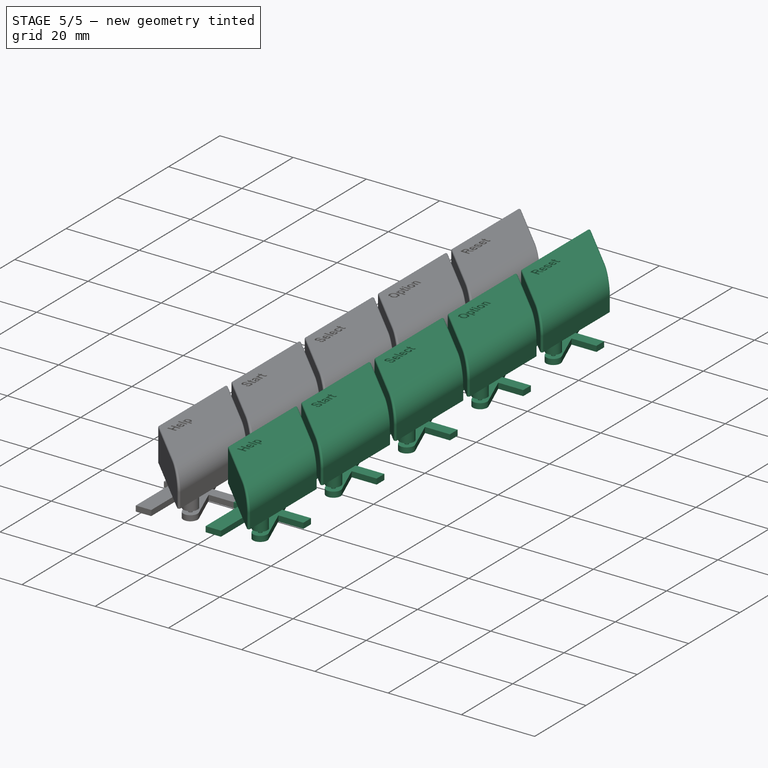
[diagram: stage 5 of 5 — iso view after this stage's code; geometry added in this stage tinted green]
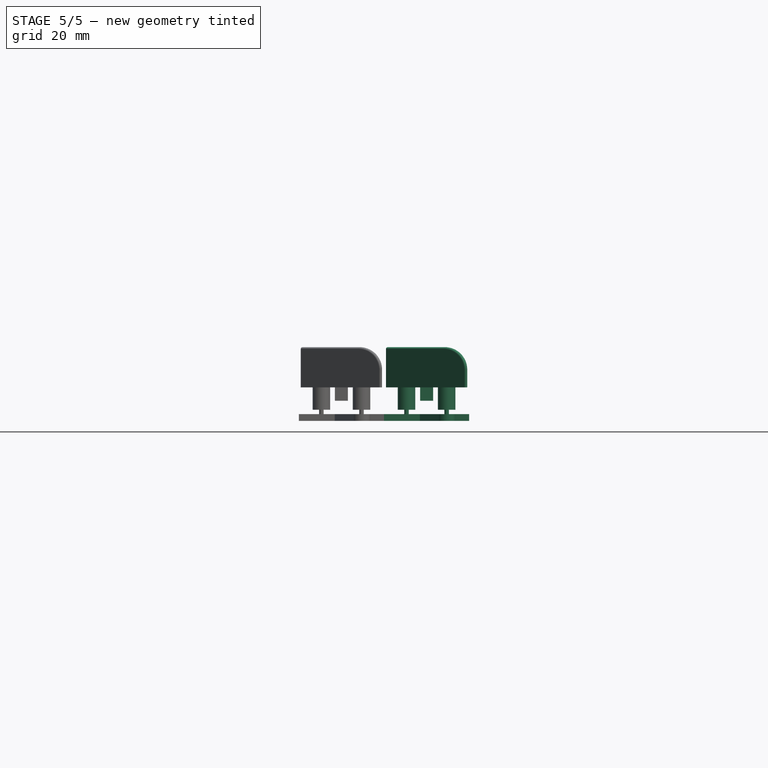
[diagram: stage 5 of 5 — front view after this stage's code; geometry added in this stage tinted green]
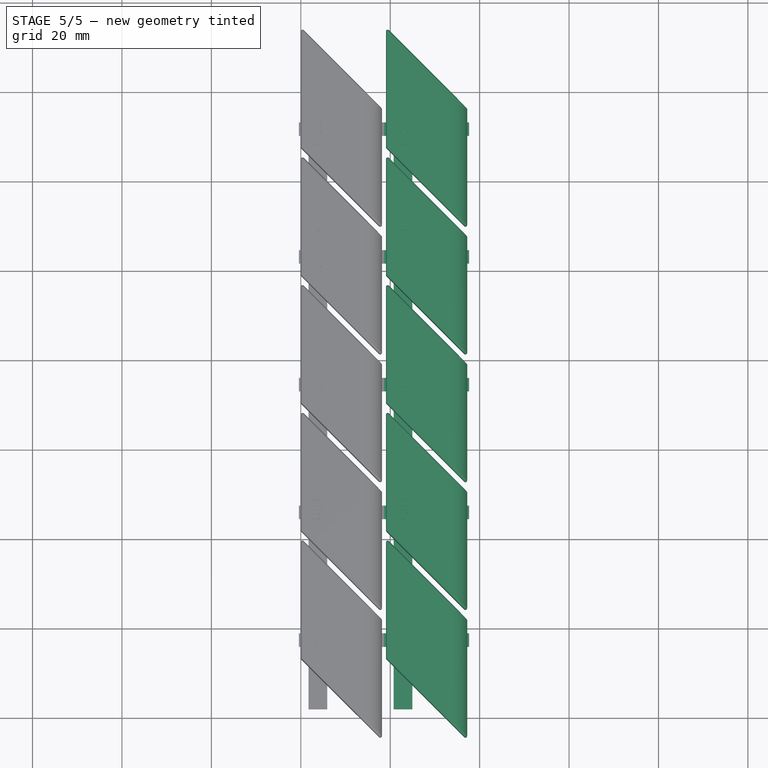
[diagram: stage 5 of 5 — top view after this stage's code; geometry added in this stage tinted green]
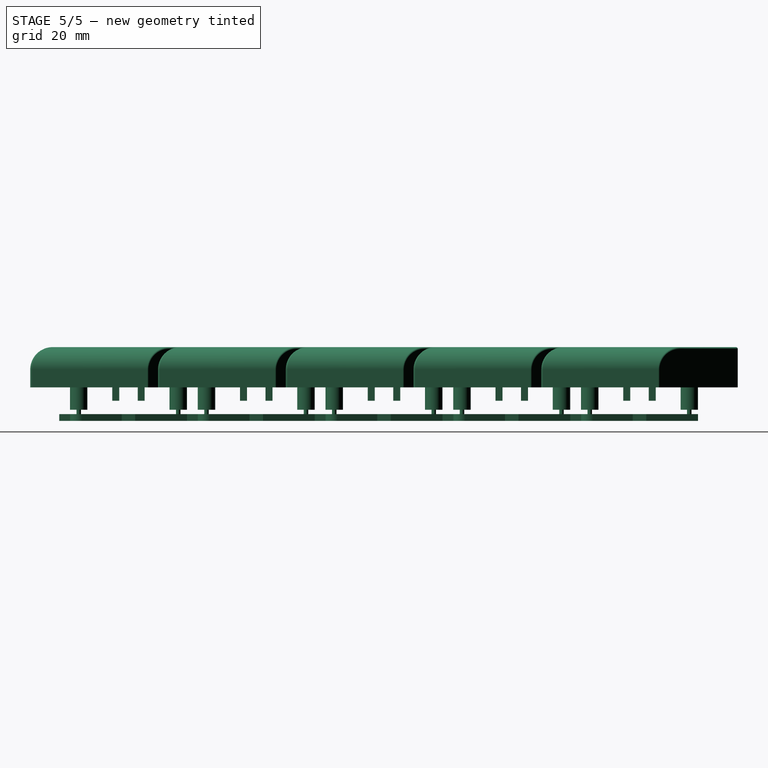
[diagram: stage 5 of 5 — right view after this stage's code; geometry added in this stage tinted green]
FEATURE [PartDesign::FeatureBase] BaseFeature
  BaseFeature = -> Populate
FEATURE [PartDesign::Body] Body001  label="MainConsoleSet"
  BaseFeature = -> Populate
  Group = -> [BaseFeature,ShapeString,ShapeString001,ShapeString002,ShapeString003,ShapeString004]
  Origin = -> Origin001
  Tip = -> BaseFeature
FEATURE [Part::Cut] Cut  label="MainConsoleKeysWithLegends"
  Base = -> Body001
  Tool = -> Compound001
FEATURE [Part::FeaturePython] Populate001  label="RowsOfMainConsoleKeys"  # WARN: FeaturePython — macro-defined, semantics opaque (R4)
  Copying = 0
  ExposePlacement = false
  MarkerShape = 1
  MarkerSize = 0
  NumElements = 0
  Object = -> Cut
  OutputCompounding = 1
  PlacementsTo = -> LinearArray001
  Referencing = 0
  Type = lattice2PopulateCopies.LatticePopulateCopies
  isLattice = 0
FEATURE [Part::Compound] Compound002  label="RowsOfMainConsoleKeysCompound"
  Links = -> [Populate001]
note: 5 file-system paths scrubbed to <path> (originals preserved in the JSON sidecar)
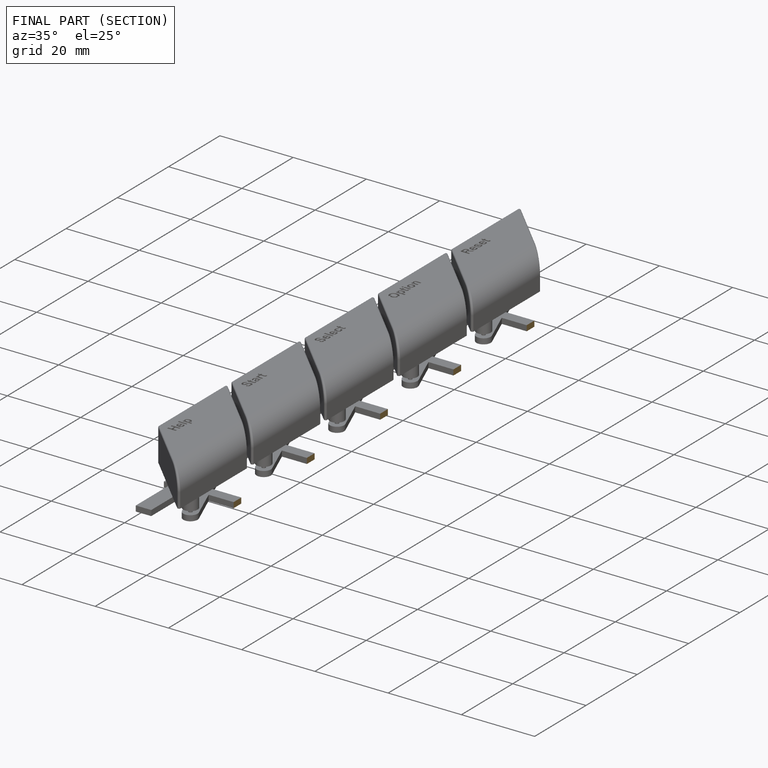
[diagram: finished part — half-section view (interior)]
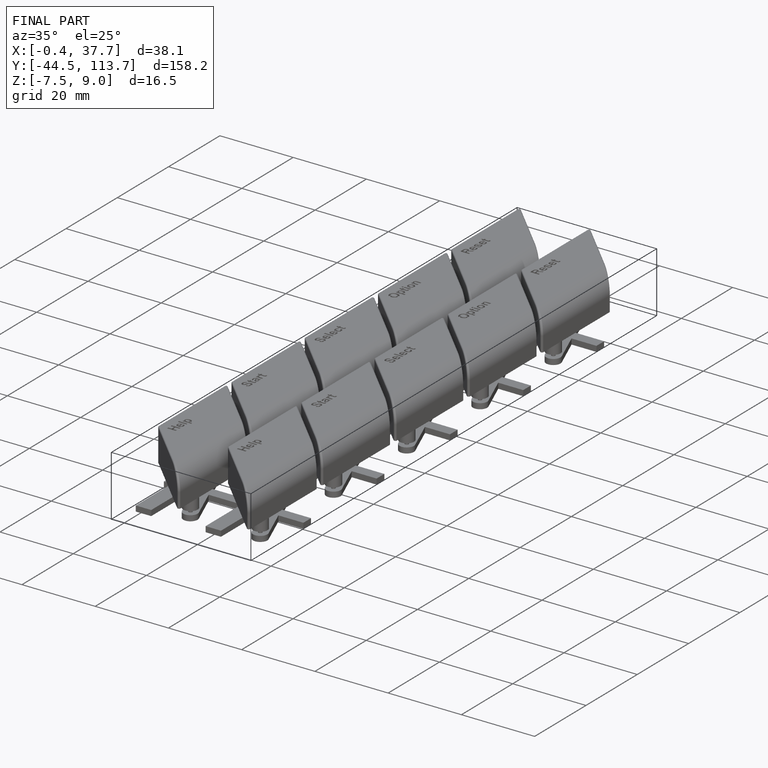
[diagram: finished part — iso view with bounding-box wireframe]
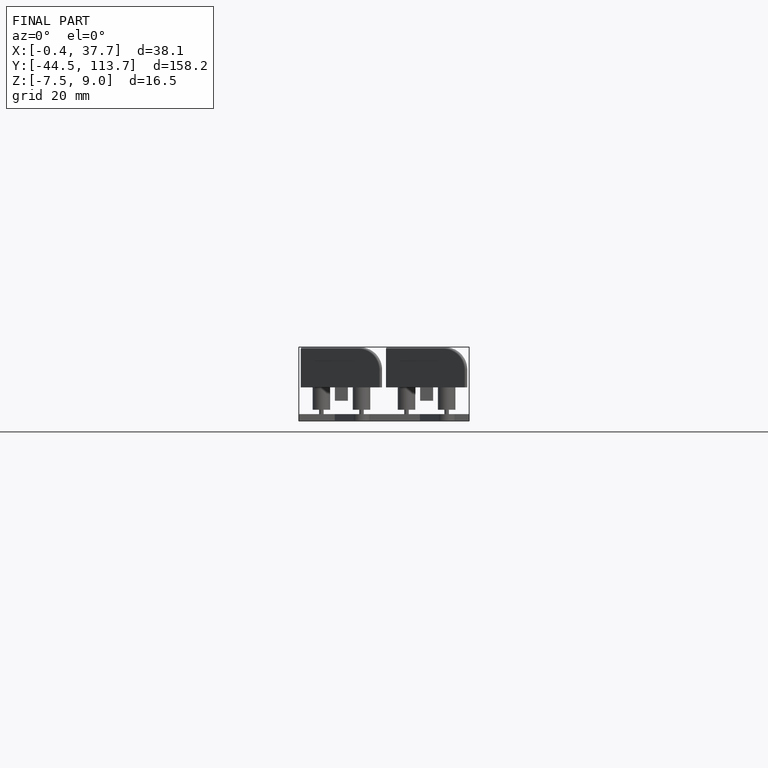
[diagram: finished part — front view with bounding-box wireframe]
